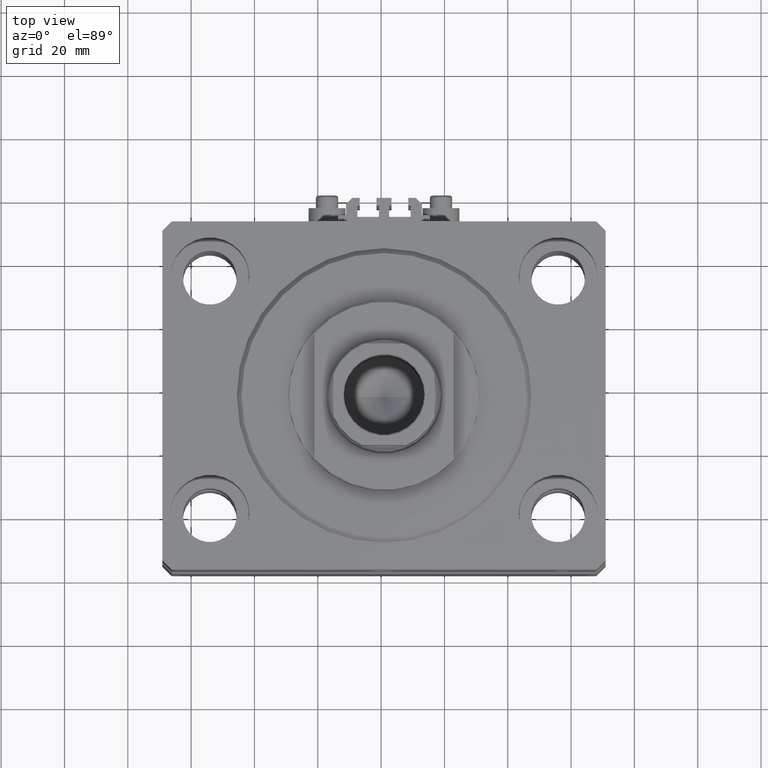
[diagram: clean part render]
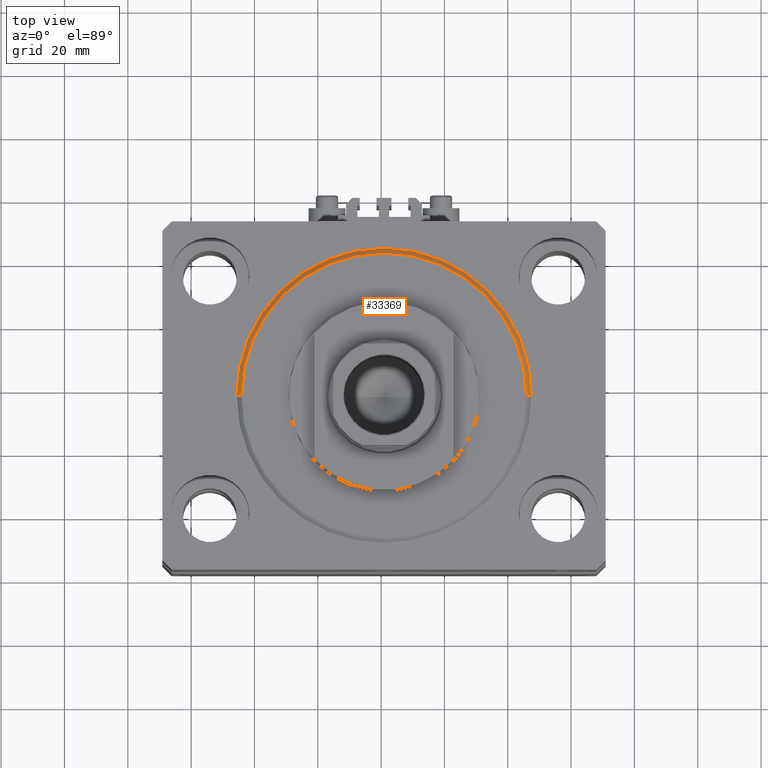
[diagram: same view with one face highlighted and labeled with its STEP entity id]
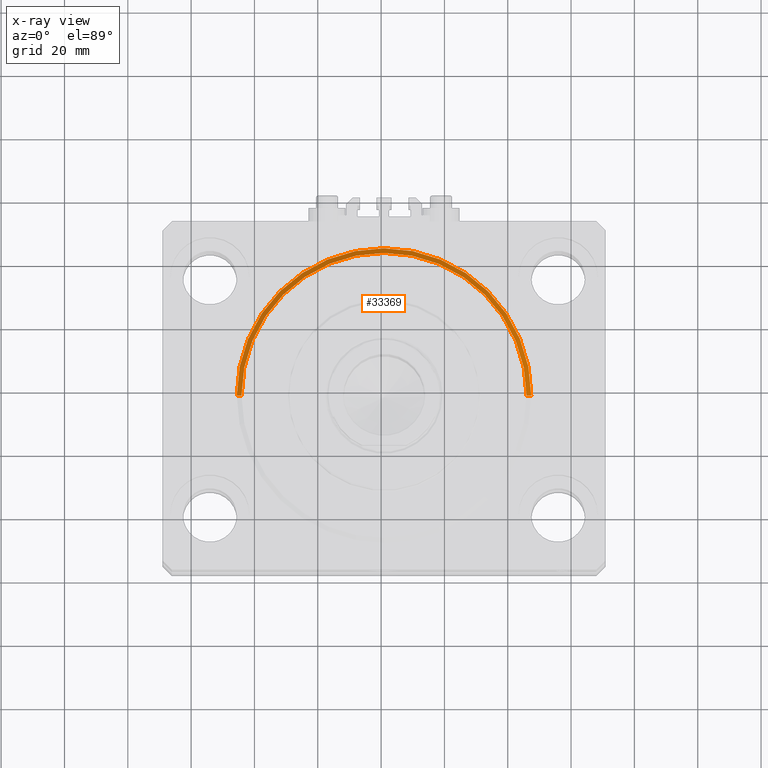
[diagram: x-ray of the same camera — body ghosted, the highlighted face saturated]
A machine part, top view. The second image highlights one B-rep face of the part: STEP entity #33369.
The next image is the same camera in x-ray: the body ghosted, the highlighted face saturated — about 0% of this face is hidden behind the body in this view.
In plain terms, the highlighted conical surface has half-angle 45 deg.
Its self-contained STEP definition (entity closure, byte-faithful):
#3136 = LINE ( 'NONE', #41585, #32141 ) ;
#3468 = ORIENTED_EDGE ( 'NONE', *, *, #34042, .F. ) ;
#4213 = AXIS2_PLACEMENT_3D ( 'NONE', #36664, #21904, #29900 ) ;
#5266 = EDGE_CURVE ( 'NONE', #31740, #11211, #3136, .T. ) ;
#6195 = FACE_OUTER_BOUND ( 'NONE', #8075, .T. ) ;
#6324 = DIRECTION ( 'NONE',  ( -0.000000000000000000, -0.000000000000000000, 1.000000000000000000 ) ) ;
#8075 = EDGE_LOOP ( 'NONE', ( #3468, #37323, #43619, #25369 ) ) ;
#8721 = CARTESIAN_POINT ( 'NONE',  ( 46.50000000000000000, 0.000000000000000000, 1.499999999999980460 ) ) ;
#9926 = CARTESIAN_POINT ( 'NONE',  ( -45.00000000000000000, 5.602759106099140917E-15, 0.000000000000000000 ) ) ;
#11211 = VERTEX_POINT ( 'NONE', #46564 ) ;
#11398 = CONICAL_SURFACE ( 'NONE', #4213, 46.50000000000000000, 0.7853981633974552734 ) ;
#15947 = DIRECTION ( 'NONE',  ( 0.7071067811865524577, 0.000000000000000000, 0.7071067811865425767 ) ) ;
#16184 = CIRCLE ( 'NONE', #48069, 45.00000000000000000 ) ;
#18350 = DIRECTION ( 'NONE',  ( -0.7071067811865524577, 8.659560562354993255E-17, 0.7071067811865425767 ) ) ;
#20078 = AXIS2_PLACEMENT_3D ( 'NONE', #41505, #6324, #30031 ) ;
#21295 = CARTESIAN_POINT ( 'NONE',  ( 0.000000000000000000, 0.000000000000000000, 0.000000000000000000 ) ) ;
#21904 = DIRECTION ( 'NONE',  ( -0.000000000000000000, -0.000000000000000000, 1.000000000000000000 ) ) ;
#22016 = DIRECTION ( 'NONE',  ( -0.000000000000000000, -0.000000000000000000, -1.000000000000000000 ) ) ;
#25369 = ORIENTED_EDGE ( 'NONE', *, *, #34390, .F. ) ;
#28276 = EDGE_CURVE ( 'NONE', #42300, #11211, #41586, .T. ) ;
#29900 = DIRECTION ( 'NONE',  ( 1.000000000000000000, 0.000000000000000000, 0.000000000000000000 ) ) ;
#30031 = DIRECTION ( 'NONE',  ( 1.000000000000000000, 0.000000000000000000, 0.000000000000000000 ) ) ;
#31740 = VERTEX_POINT ( 'NONE', #9926 ) ;
#32141 = VECTOR ( 'NONE', #18350, 1000.000000000000114 ) ;
#32332 = DIRECTION ( 'NONE',  ( 1.000000000000000000, 0.000000000000000000, 0.000000000000000000 ) ) ;
#32972 = VECTOR ( 'NONE', #15947, 1000.000000000000114 ) ;
#33369 = ADVANCED_FACE ( 'NONE', ( #6195 ), #11398, .T. ) ;
#34042 = EDGE_CURVE ( 'NONE', #31740, #42362, #16184, .T. ) ;
#34390 = EDGE_CURVE ( 'NONE', #42362, #42300, #42685, .T. ) ;
#34686 = CARTESIAN_POINT ( 'NONE',  ( 45.00000000000000000, 0.000000000000000000, 0.000000000000000000 ) ) ;
#36664 = CARTESIAN_POINT ( 'NONE',  ( 0.000000000000000000, 0.000000000000000000, 1.499999999999980460 ) ) ;
#37323 = ORIENTED_EDGE ( 'NONE', *, *, #5266, .T. ) ;
#41505 = CARTESIAN_POINT ( 'NONE',  ( 0.000000000000000000, 0.000000000000000000, 1.499999999999980460 ) ) ;
#41585 = CARTESIAN_POINT ( 'NONE',  ( -46.50000000000000000, 5.694607616035192278E-15, 1.499999999999980460 ) ) ;
#41586 = CIRCLE ( 'NONE', #20078, 46.50000000000000000 ) ;
#42148 = CARTESIAN_POINT ( 'NONE',  ( 46.50000000000000000, 5.694607616035192278E-15, 1.499999999999980460 ) ) ;
#42300 = VERTEX_POINT ( 'NONE', #42148 ) ;
#42362 = VERTEX_POINT ( 'NONE', #34686 ) ;
#42685 = LINE ( 'NONE', #8721, #32972 ) ;
#43619 = ORIENTED_EDGE ( 'NONE', *, *, #28276, .F. ) ;
#46564 = CARTESIAN_POINT ( 'NONE',  ( -46.50000000000000000, 0.000000000000000000, 1.499999999999980460 ) ) ;
#48069 = AXIS2_PLACEMENT_3D ( 'NONE', #21295, #22016, #32332 ) ;